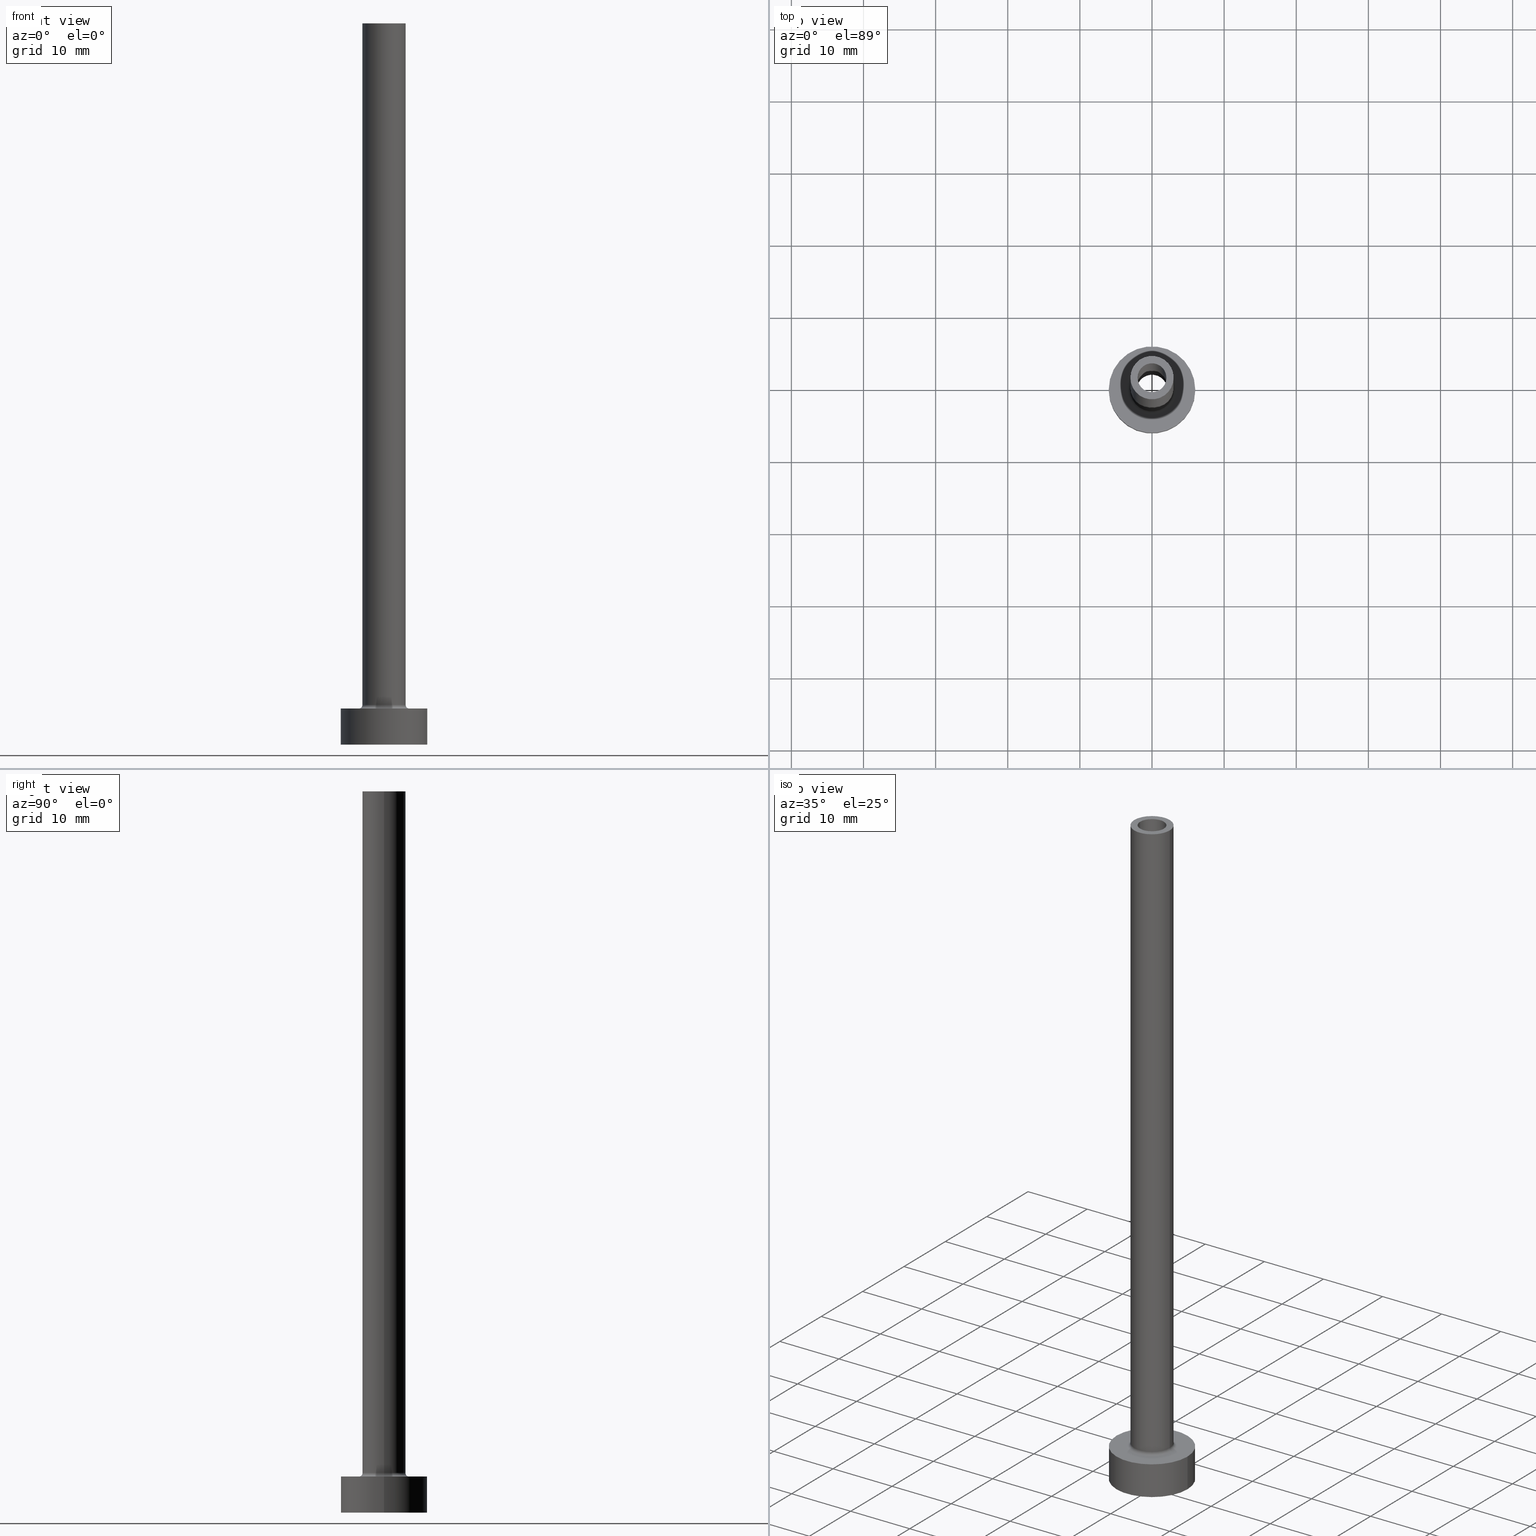
[diagram: canonical four-view strip — front | top / right | iso, engineering-drawing reading convention]
A machine part, canonical four-view strip (front | top / right | iso — engineering-drawing reading convention). The complete STEP part file that produces these views, byte-faithful:
ISO-10303-21;
HEADER;
FILE_DESCRIPTION (( 'STEP AP203' ),
    '1' );
FILE_NAME ('1d39.STEP',
    '2023-02-13T17:46:49',
    ( '' ),
    ( '' ),
    'SwSTEP 2.0',
    'SolidWorks 2019',
    '' );
FILE_SCHEMA (( 'CONFIG_CONTROL_DESIGN' ));
ENDSEC;

DATA;
#1 = ORIENTED_EDGE ( 'NONE', *, *, #30, .T. ) ;
#2 = ADVANCED_FACE ( 'NONE', ( #85, #230 ), #116, .F. ) ;
#3 = CARTESIAN_POINT ( 'NONE',  ( 2.000000000000000000, 2.449293598294705921E-16, 100.0000000000000000 ) ) ;
#4 = AXIS2_PLACEMENT_3D ( 'NONE', #364, #332, #152 ) ;
#5 = APPROVAL_DATE_TIME ( #229, #184 ) ;
#6 = VERTEX_POINT ( 'NONE', #192 ) ;
#7 = EDGE_LOOP ( 'NONE', ( #169, #284, #318, #346 ) ) ;
#8 = AXIS2_PLACEMENT_3D ( 'NONE', #281, #450, #112 ) ;
#9 = LOCAL_TIME ( 18, 46, 49.00000000000000000, #193 ) ;
#10 = DIRECTION ( 'NONE',  ( 0.000000000000000000, 0.000000000000000000, 1.000000000000000000 ) ) ;
#11 = VERTEX_POINT ( 'NONE', #265 ) ;
#12 = CARTESIAN_POINT ( 'NONE',  ( 0.000000000000000000, 0.000000000000000000, 55.00000000000000711 ) ) ;
#13 = EDGE_CURVE ( 'NONE', #219, #11, #358, .T. ) ;
#14 = CARTESIAN_POINT ( 'NONE',  ( 0.000000000000000000, 0.000000000000000000, 55.00000000000000711 ) ) ;
#15 = AXIS2_PLACEMENT_3D ( 'NONE', #410, #98, #460 ) ;
#16 = PERSON_AND_ORGANIZATION_ROLE ( 'classification_officer' ) ;
#17 = DIRECTION ( 'NONE',  ( 1.000000000000000000, 0.000000000000000000, 0.000000000000000000 ) ) ;
#18 = APPLICATION_CONTEXT ( 'configuration controlled 3d designs of mechanical parts and assemblies' ) ;
#19 = DIRECTION ( 'NONE',  ( 0.000000000000000000, 0.000000000000000000, 1.000000000000000000 ) ) ;
#20 = DIRECTION ( 'NONE',  ( 1.000000000000000000, 0.000000000000000000, 0.000000000000000000 ) ) ;
#21 = AXIS2_PLACEMENT_3D ( 'NONE', #14, #435, #154 ) ;
#22 = CIRCLE ( 'NONE', #15, 2.149999999999999911 ) ;
#23 = LOCAL_TIME ( 18, 46, 49.00000000000000000, #301 ) ;
#24 = DIRECTION ( 'NONE',  ( 0.000000000000000000, 0.000000000000000000, -1.000000000000000000 ) ) ;
#25 = EDGE_CURVE ( 'NONE', #282, #210, #42, .T. ) ;
#26 = CARTESIAN_POINT ( 'NONE',  ( 3.000000000000000444, 3.673940397442060361E-16, 100.0000000000000000 ) ) ;
#27 = CYLINDRICAL_SURFACE ( 'NONE', #431, 6.000000000000000888 ) ;
#28 = ORIENTED_EDGE ( 'NONE', *, *, #81, .T. ) ;
#29 = VECTOR ( 'NONE', #366, 1000.000000000000000 ) ;
#30 = EDGE_CURVE ( 'NONE', #187, #140, #209, .T. ) ;
#31 = ADVANCED_FACE ( 'NONE', ( #231, #288 ), #397, .T. ) ;
#32 = CARTESIAN_POINT ( 'NONE',  ( 6.000000000000000888, 7.347880794884120722E-16, 5.000000000000000000 ) ) ;
#33 = AXIS2_PLACEMENT_3D ( 'NONE', #155, #89, #447 ) ;
#34 = ORIENTED_EDGE ( 'NONE', *, *, #13, .F. ) ;
#35 = DIRECTION ( 'NONE',  ( 0.000000000000000000, 0.000000000000000000, 1.000000000000000000 ) ) ;
#36 = EDGE_LOOP ( 'NONE', ( #118, #415, #328, #313 ) ) ;
#37 = DIRECTION ( 'NONE',  ( 0.000000000000000000, 0.000000000000000000, -1.000000000000000000 ) ) ;
#38 = ORIENTED_EDGE ( 'NONE', *, *, #174, .T. ) ;
#39 = COORDINATED_UNIVERSAL_TIME_OFFSET ( 1, 0, .AHEAD. ) ;
#40 = VERTEX_POINT ( 'NONE', #296 ) ;
#41 = AXIS2_PLACEMENT_3D ( 'NONE', #242, #275, #136 ) ;
#42 = LINE ( 'NONE', #44, #393 ) ;
#43 = APPROVAL_STATUS ( 'not_yet_approved' ) ;
#44 = CARTESIAN_POINT ( 'NONE',  ( -3.000000000000000444, 0.000000000000000000, 100.0000000000000000 ) ) ;
#45 = ORIENTED_EDGE ( 'NONE', *, *, #228, .F. ) ;
#46 = ADVANCED_FACE ( 'NONE', ( #356 ), #107, .F. ) ;
#47 = AXIS2_PLACEMENT_3D ( 'NONE', #257, #290, #83 ) ;
#48 = ORIENTED_EDGE ( 'NONE', *, *, #176, .F. ) ;
#49 = CIRCLE ( 'NONE', #451, 2.000000000000000000 ) ;
#50 = EDGE_LOOP ( 'NONE', ( #253, #381, #379, #359 ) ) ;
#51 = LOCAL_TIME ( 18, 46, 49.00000000000000000, #437 ) ;
#52 = CC_DESIGN_APPROVAL ( #184, ( #440 ) ) ;
#53 = CARTESIAN_POINT ( 'NONE',  ( 0.000000000000000000, 0.000000000000000000, 0.000000000000000000 ) ) ;
#54 = APPROVAL_DATE_TIME ( #191, #204 ) ;
#55 = DIRECTION ( 'NONE',  ( 0.000000000000000000, -1.000000000000000000, 0.000000000000000000 ) ) ;
#56 = DIRECTION ( 'NONE',  ( 0.000000000000000000, 0.000000000000000000, -1.000000000000000000 ) ) ;
#57 = CIRCLE ( 'NONE', #369, 2.000000000000000000 ) ;
#58 = DIRECTION ( 'NONE',  ( 0.000000000000000000, 0.000000000000000000, 1.000000000000000000 ) ) ;
#59 = DIRECTION ( 'NONE',  ( -1.000000000000000000, 0.000000000000000000, 0.000000000000000000 ) ) ;
#60 = ADVANCED_FACE ( 'NONE', ( #87, #226 ), #430, .T. ) ;
#61 = CARTESIAN_POINT ( 'NONE',  ( -3.000000000000000444, 0.000000000000000000, 5.500000000000005329 ) ) ;
#62 = AXIS2_PLACEMENT_3D ( 'NONE', #405, #93, #59 ) ;
#63 = FACE_OUTER_BOUND ( 'NONE', #148, .T. ) ;
#64 = VERTEX_POINT ( 'NONE', #388 ) ;
#65 = CARTESIAN_POINT ( 'NONE',  ( 0.000000000000000000, 0.000000000000000000, 5.000000000000000000 ) ) ;
#66 = PERSON ( 'NEUR�EN�', 'NEUR�EN�', 'NEUR�EN�', ('NEUR�EN�'), ('NEUR�EN�'), ('NEUR�EN�') ) ;
#67 = PRODUCT_DEFINITION_SHAPE ( 'NONE', 'NONE',  #440 ) ;
#68 = ORIENTED_EDGE ( 'NONE', *, *, #211, .F. ) ;
#69 = CARTESIAN_POINT ( 'NONE',  ( -2.149999999999999911, 0.000000000000000000, 55.00000000000000711 ) ) ;
#70 = ORIENTED_EDGE ( 'NONE', *, *, #305, .T. ) ;
#71 = CARTESIAN_POINT ( 'NONE',  ( -6.000000000000000888, 0.000000000000000000, 0.000000000000000000 ) ) ;
#72 = VERTEX_POINT ( 'NONE', #120 ) ;
#73 = DIRECTION ( 'NONE',  ( 1.000000000000000000, 0.000000000000000000, 0.000000000000000000 ) ) ;
#74 = EDGE_CURVE ( 'NONE', #426, #385, #199, .T. ) ;
#75 = ORIENTED_EDGE ( 'NONE', *, *, #228, .T. ) ;
#76 = DIRECTION ( 'NONE',  ( -0.000000000000000000, -0.000000000000000000, -1.000000000000000000 ) ) ;
#77 = VECTOR ( 'NONE', #370, 1000.000000000000000 ) ;
#78 = ORIENTED_EDGE ( 'NONE', *, *, #417, .T. ) ;
#79 = DIRECTION ( 'NONE',  ( 0.000000000000000000, 0.000000000000000000, 1.000000000000000000 ) ) ;
#80 = CARTESIAN_POINT ( 'NONE',  ( 0.000000000000000000, 0.000000000000000000, 0.000000000000000000 ) ) ;
#81 = EDGE_CURVE ( 'NONE', #72, #11, #360, .T. ) ;
#82 = APPLICATION_PROTOCOL_DEFINITION ( 'international standard', 'config_control_design', 1994, #363 ) ;
#83 = DIRECTION ( 'NONE',  ( 1.000000000000000000, 0.000000000000000000, -0.000000000000000000 ) ) ;
#84 = ORIENTED_EDGE ( 'NONE', *, *, #111, .T. ) ;
#85 = FACE_BOUND ( 'NONE', #432, .T. ) ;
#86 = CIRCLE ( 'NONE', #188, 6.000000000000000888 ) ;
#87 = FACE_BOUND ( 'NONE', #102, .T. ) ;
#88 = APPROVAL_ROLE ( '' ) ;
#89 = DIRECTION ( 'NONE',  ( -0.000000000000000000, -0.000000000000000000, -1.000000000000000000 ) ) ;
#90 = AXIS2_PLACEMENT_3D ( 'NONE', #223, #55, #391 ) ;
#91 = DIRECTION ( 'NONE',  ( 0.000000000000000000, 0.000000000000000000, 1.000000000000000000 ) ) ;
#92 = CIRCLE ( 'NONE', #349, 3.000000000000000444 ) ;
#93 = DIRECTION ( 'NONE',  ( 0.000000000000000000, 0.000000000000000000, -1.000000000000000000 ) ) ;
#94 = EDGE_CURVE ( 'NONE', #421, #40, #227, .T. ) ;
#95 = CARTESIAN_POINT ( 'NONE',  ( 0.000000000000000000, 0.000000000000000000, 100.0000000000000000 ) ) ;
#96 = CC_DESIGN_DATE_AND_TIME_ASSIGNMENT ( #398, #407, ( #440 ) ) ;
#97 = CC_DESIGN_PERSON_AND_ORGANIZATION_ASSIGNMENT ( #404, #200, ( #235 ) ) ;
#98 = DIRECTION ( 'NONE',  ( 0.000000000000000000, 0.000000000000000000, 1.000000000000000000 ) ) ;
#99 = CIRCLE ( 'NONE', #195, 0.4999999999999995559 ) ;
#100 = SECURITY_CLASSIFICATION ( '', '', #400 ) ;
#101 = DIRECTION ( 'NONE',  ( -0.000000000000000000, -0.000000000000000000, -1.000000000000000000 ) ) ;
#102 = EDGE_LOOP ( 'NONE', ( #137, #250 ) ) ;
#103 = CARTESIAN_POINT ( 'NONE',  ( 0.000000000000000000, 0.000000000000000000, 0.000000000000000000 ) ) ;
#104 = ORIENTED_EDGE ( 'NONE', *, *, #321, .T. ) ;
#105 = CYLINDRICAL_SURFACE ( 'NONE', #317, 2.000000000000000000 ) ;
#106 = EDGE_LOOP ( 'NONE', ( #329, #110 ) ) ;
#107 = TOROIDAL_SURFACE ( 'NONE', #434, 3.500000000000000444, 0.5000000000000000000 ) ;
#108 = AXIS2_PLACEMENT_3D ( 'NONE', #343, #24, #165 ) ;
#109 = DIRECTION ( 'NONE',  ( -0.000000000000000000, -0.000000000000000000, -1.000000000000000000 ) ) ;
#110 = ORIENTED_EDGE ( 'NONE', *, *, #74, .F. ) ;
#111 = EDGE_CURVE ( 'NONE', #40, #421, #262, .T. ) ;
#112 = DIRECTION ( 'NONE',  ( -1.000000000000000000, 0.000000000000000000, 0.000000000000000000 ) ) ;
#113 = ORIENTED_EDGE ( 'NONE', *, *, #190, .T. ) ;
#114 = DIRECTION ( 'NONE',  ( -0.000000000000000000, -0.000000000000000000, -1.000000000000000000 ) ) ;
#115 = EDGE_LOOP ( 'NONE', ( #387, #252, #214, #177 ) ) ;
#116 = PLANE ( 'NONE',  #47 ) ;
#117 = AXIS2_PLACEMENT_3D ( 'NONE', #131, #58, #341 ) ;
#118 = ORIENTED_EDGE ( 'NONE', *, *, #339, .F. ) ;
#119 = VERTEX_POINT ( 'NONE', #3 ) ;
#120 = CARTESIAN_POINT ( 'NONE',  ( -2.149999999999999911, 0.000000000000000000, 0.000000000000000000 ) ) ;
#121 = CYLINDRICAL_SURFACE ( 'NONE', #164, 6.000000000000000888 ) ;
#122 = CIRCLE ( 'NONE', #277, 3.500000000000000444 ) ;
#123 = LINE ( 'NONE', #373, #77 ) ;
#124 = CALENDAR_DATE ( 2023, 13, 2 ) ;
#125 = CARTESIAN_POINT ( 'NONE',  ( -3.500000000000000444, 4.286263797015737088E-16, 5.500000000000005329 ) ) ;
#126 = AXIS2_PLACEMENT_3D ( 'NONE', #12, #186, #294 ) ;
#127 = CARTESIAN_POINT ( 'NONE',  ( 3.000000000000000444, 3.673940397442060361E-16, 5.500000000000005329 ) ) ;
#128 = VECTOR ( 'NONE', #267, 1000.000000000000000 ) ;
#129 = CARTESIAN_POINT ( 'NONE',  ( 3.500000000000000444, 0.000000000000000000, 5.000000000000002665 ) ) ;
#130 = CALENDAR_DATE ( 2023, 13, 2 ) ;
#131 = CARTESIAN_POINT ( 'NONE',  ( 0.000000000000000000, 0.000000000000000000, 5.500000000000005329 ) ) ;
#132 = DIRECTION ( 'NONE',  ( 1.000000000000000000, 0.000000000000000000, 0.000000000000000000 ) ) ;
#133 = CLOSED_SHELL ( 'NONE', ( #316, #419, #46, #448, #357, #135, #31, #160, #144, #60, #244, #273, #2, #260 ) ) ;
#134 = CIRCLE ( 'NONE', #233, 3.500000000000000444 ) ;
#135 = ADVANCED_FACE ( 'NONE', ( #297 ), #121, .T. ) ;
#136 = DIRECTION ( 'NONE',  ( 1.000000000000000000, 0.000000000000000000, 0.000000000000000000 ) ) ;
#137 = ORIENTED_EDGE ( 'NONE', *, *, #305, .F. ) ;
#138 = PRODUCT ( '1d39', '1d39', '', ( #222 ) ) ;
#139 = DIRECTION ( 'NONE',  ( 1.000000000000000000, 0.000000000000000000, 0.000000000000000000 ) ) ;
#140 = VERTEX_POINT ( 'NONE', #129 ) ;
#141 = CC_DESIGN_PERSON_AND_ORGANIZATION_ASSIGNMENT ( #336, #16, ( #100 ) ) ;
#142 = DIRECTION ( 'NONE',  ( 1.000000000000000000, 0.000000000000000000, 0.000000000000000000 ) ) ;
#143 = VERTEX_POINT ( 'NONE', #376 ) ;
#144 = ADVANCED_FACE ( 'NONE', ( #268 ), #375, .T. ) ;
#145 = CIRCLE ( 'NONE', #334, 2.149999999999999911 ) ;
#146 = CYLINDRICAL_SURFACE ( 'NONE', #8, 3.000000000000000444 ) ;
#147 = EDGE_LOOP ( 'NONE', ( #34, #287, #220, #28 ) ) ;
#148 = EDGE_LOOP ( 'NONE', ( #325, #68, #1, #319 ) ) ;
#149 = ORIENTED_EDGE ( 'NONE', *, *, #174, .F. ) ;
#150 = DIRECTION ( 'NONE',  ( 1.000000000000000000, 0.000000000000000000, 0.000000000000000000 ) ) ;
#151 = CARTESIAN_POINT ( 'NONE',  ( 0.000000000000000000, 0.000000000000000000, 5.500000000000005329 ) ) ;
#152 = DIRECTION ( 'NONE',  ( 1.000000000000000000, 0.000000000000000000, -0.000000000000000000 ) ) ;
#153 = DIRECTION ( 'NONE',  ( 1.000000000000000000, 0.000000000000000000, -0.000000000000000000 ) ) ;
#154 = DIRECTION ( 'NONE',  ( 1.000000000000000000, 0.000000000000000000, 0.000000000000000000 ) ) ;
#155 = CARTESIAN_POINT ( 'NONE',  ( 0.000000000000000000, 0.000000000000000000, 100.0000000000000000 ) ) ;
#156 = CIRCLE ( 'NONE', #117, 3.000000000000000444 ) ;
#157 = DIRECTION ( 'NONE',  ( -1.000000000000000000, 0.000000000000000000, 0.000000000000000000 ) ) ;
#158 = EDGE_CURVE ( 'NONE', #210, #254, #99, .T. ) ;
#159 = DATE_AND_TIME ( #124, #51 ) ;
#160 = ADVANCED_FACE ( 'NONE', ( #399, #304 ), #232, .F. ) ;
#161 = DIRECTION ( 'NONE',  ( 1.000000000000000000, 0.000000000000000000, 0.000000000000000000 ) ) ;
#162 = PERSON_AND_ORGANIZATION ( #66, #266 ) ;
#163 = CARTESIAN_POINT ( 'NONE',  ( -3.500000000000000444, 4.286263797015737088E-16, 5.000000000000002665 ) ) ;
#164 = AXIS2_PLACEMENT_3D ( 'NONE', #427, #114, #157 ) ;
#165 = DIRECTION ( 'NONE',  ( -1.000000000000000000, 0.000000000000000000, 0.000000000000000000 ) ) ;
#166 = CARTESIAN_POINT ( 'NONE',  ( 2.000000000000000000, 2.449293598294705921E-16, 55.00000000000000711 ) ) ;
#167 = EDGE_CURVE ( 'NONE', #361, #72, #367, .T. ) ;
#168 = CARTESIAN_POINT ( 'NONE',  ( 6.000000000000000888, 7.347880794884120722E-16, 0.000000000000000000 ) ) ;
#169 = ORIENTED_EDGE ( 'NONE', *, *, #383, .F. ) ;
#170 = ADVANCED_BREP_SHAPE_REPRESENTATION ( '1d39', ( #446, #247 ), #382 ) ;
#171 = CIRCLE ( 'NONE', #41, 6.000000000000000888 ) ;
#172 = DIRECTION ( 'NONE',  ( -0.000000000000000000, -0.000000000000000000, -1.000000000000000000 ) ) ;
#173 = ORIENTED_EDGE ( 'NONE', *, *, #74, .T. ) ;
#174 = EDGE_CURVE ( 'NONE', #282, #6, #422, .T. ) ;
#175 = LINE ( 'NONE', #32, #442 ) ;
#176 = EDGE_CURVE ( 'NONE', #11, #72, #221, .T. ) ;
#177 = ORIENTED_EDGE ( 'NONE', *, *, #25, .F. ) ;
#178 = CARTESIAN_POINT ( 'NONE',  ( 0.000000000000000000, 0.000000000000000000, 100.0000000000000000 ) ) ;
#179 = EDGE_LOOP ( 'NONE', ( #104, #452 ) ) ;
#180 = CIRCLE ( 'NONE', #298, 6.000000000000000888 ) ;
#181 = EDGE_LOOP ( 'NONE', ( #412, #259, #173, #315 ) ) ;
#182 = PERSON_AND_ORGANIZATION ( #66, #266 ) ;
#183 = DIRECTION ( 'NONE',  ( 1.000000000000000000, 0.000000000000000000, 0.000000000000000000 ) ) ;
#184 = APPROVAL ( #43, 'NEUR�EN�' ) ;
#185 =( NAMED_UNIT ( * ) SI_UNIT ( $, .STERADIAN. ) SOLID_ANGLE_UNIT ( ) );
#186 = DIRECTION ( 'NONE',  ( 0.000000000000000000, 0.000000000000000000, 1.000000000000000000 ) ) ;
#187 = VERTEX_POINT ( 'NONE', #127 ) ;
#188 = AXIS2_PLACEMENT_3D ( 'NONE', #274, #19, #161 ) ;
#189 = DIRECTION ( 'NONE',  ( -0.000000000000000000, -0.000000000000000000, -1.000000000000000000 ) ) ;
#190 = EDGE_CURVE ( 'NONE', #119, #421, #123, .T. ) ;
#191 = DATE_AND_TIME ( #130, #9 ) ;
#192 = CARTESIAN_POINT ( 'NONE',  ( 3.000000000000000444, 3.673940397442060361E-16, 100.0000000000000000 ) ) ;
#193 = COORDINATED_UNIVERSAL_TIME_OFFSET ( 1, 0, .AHEAD. ) ;
#194 = DIRECTION ( 'NONE',  ( 1.000000000000000000, 0.000000000000000000, 0.000000000000000000 ) ) ;
#195 = AXIS2_PLACEMENT_3D ( 'NONE', #125, #236, #272 ) ;
#196 = APPROVAL_ROLE ( '' ) ;
#197 = LINE ( 'NONE', #344, #128 ) ;
#198 = CARTESIAN_POINT ( 'NONE',  ( -2.149999999999999911, 0.000000000000000000, 61.08111831820431092 ) ) ;
#199 = CIRCLE ( 'NONE', #459, 6.000000000000000888 ) ;
#200 = PERSON_AND_ORGANIZATION_ROLE ( 'creator' ) ;
#201 = DIRECTION ( 'NONE',  ( 0.000000000000000000, 0.000000000000000000, 1.000000000000000000 ) ) ;
#202 = VECTOR ( 'NONE', #101, 1000.000000000000000 ) ;
#203 = CYLINDRICAL_SURFACE ( 'NONE', #108, 2.149999999999999911 ) ;
#204 = APPROVAL ( #365, 'NEUR�EN�' ) ;
#205 =( LENGTH_UNIT ( ) NAMED_UNIT ( * ) SI_UNIT ( .MILLI., .METRE. ) );
#206 = EDGE_LOOP ( 'NONE', ( #246, #456, #75, #458 ) ) ;
#207 = CC_DESIGN_DATE_AND_TIME_ASSIGNMENT ( #159, #340, ( #100 ) ) ;
#208 = DIRECTION ( 'NONE',  ( -0.000000000000000000, -0.000000000000000000, -1.000000000000000000 ) ) ;
#209 = CIRCLE ( 'NONE', #90, 0.5000000000000004441 ) ;
#210 = VERTEX_POINT ( 'NONE', #61 ) ;
#211 = EDGE_CURVE ( 'NONE', #187, #210, #156, .T. ) ;
#212 = AXIS2_PLACEMENT_3D ( 'NONE', #218, #37, #240 ) ;
#213 = DIRECTION ( 'NONE',  ( -1.000000000000000000, 0.000000000000000000, 0.000000000000000000 ) ) ;
#214 = ORIENTED_EDGE ( 'NONE', *, *, #211, .T. ) ;
#215 = EDGE_CURVE ( 'NONE', #119, #64, #49, .T. ) ;
#216 = LINE ( 'NONE', #26, #395 ) ;
#217 = ORIENTED_EDGE ( 'NONE', *, *, #353, .T. ) ;
#218 = CARTESIAN_POINT ( 'NONE',  ( 0.000000000000000000, 0.000000000000000000, 61.08111831820431092 ) ) ;
#219 = VERTEX_POINT ( 'NONE', #299 ) ;
#220 = ORIENTED_EDGE ( 'NONE', *, *, #167, .T. ) ;
#221 = CIRCLE ( 'NONE', #291, 2.149999999999999911 ) ;
#222 = MECHANICAL_CONTEXT ( 'NONE', #18, 'mechanical' ) ;
#223 = CARTESIAN_POINT ( 'NONE',  ( 3.500000000000000444, 0.000000000000000000, 5.500000000000005329 ) ) ;
#224 = DIRECTION ( 'NONE',  ( 0.000000000000000000, 0.000000000000000000, 1.000000000000000000 ) ) ;
#225 = APPROVAL_ROLE ( '' ) ;
#226 = FACE_OUTER_BOUND ( 'NONE', #425, .T. ) ;
#227 = CIRCLE ( 'NONE', #126, 2.000000000000000000 ) ;
#228 = EDGE_CURVE ( 'NONE', #64, #40, #197, .T. ) ;
#229 = DATE_AND_TIME ( #396, #248 ) ;
#230 = FACE_OUTER_BOUND ( 'NONE', #392, .T. ) ;
#231 = FACE_BOUND ( 'NONE', #241, .T. ) ;
#232 = PLANE ( 'NONE',  #239 ) ;
#233 = AXIS2_PLACEMENT_3D ( 'NONE', #347, #172, #139 ) ;
#234 = UNCERTAINTY_MEASURE_WITH_UNIT (LENGTH_MEASURE( 1.000000000000000082E-05 ), #205, 'distance_accuracy_value', 'NONE');
#235 = PRODUCT_DEFINITION_FORMATION_WITH_SPECIFIED_SOURCE ( 'LIBOVOLN�', '', #138, .NOT_KNOWN. ) ;
#236 = DIRECTION ( 'NONE',  ( 1.224646799147353207E-16, 1.000000000000000000, -0.000000000000000000 ) ) ;
#237 = PERSON_AND_ORGANIZATION ( #66, #266 ) ;
#238 = DIRECTION ( 'NONE',  ( 0.000000000000000000, 0.000000000000000000, 1.000000000000000000 ) ) ;
#239 = AXIS2_PLACEMENT_3D ( 'NONE', #401, #238, #300 ) ;
#240 = DIRECTION ( 'NONE',  ( -1.000000000000000000, 0.000000000000000000, 0.000000000000000000 ) ) ;
#241 = EDGE_LOOP ( 'NONE', ( #78, #217 ) ) ;
#242 = CARTESIAN_POINT ( 'NONE',  ( 0.000000000000000000, 0.000000000000000000, 5.000000000000000000 ) ) ;
#243 = ORIENTED_EDGE ( 'NONE', *, *, #25, .T. ) ;
#244 = ADVANCED_FACE ( 'NONE', ( #63 ), #362, .F. ) ;
#245 = DIRECTION ( 'NONE',  ( 0.000000000000000000, 0.000000000000000000, 1.000000000000000000 ) ) ;
#246 = ORIENTED_EDGE ( 'NONE', *, *, #190, .F. ) ;
#247 = AXIS2_PLACEMENT_3D ( 'NONE', #330, #79, #150 ) ;
#248 = LOCAL_TIME ( 18, 46, 49.00000000000000000, #322 ) ;
#249 = FACE_OUTER_BOUND ( 'NONE', #348, .T. ) ;
#250 = ORIENTED_EDGE ( 'NONE', *, *, #215, .F. ) ;
#251 = DIRECTION ( 'NONE',  ( 0.000000000000000000, 0.000000000000000000, 1.000000000000000000 ) ) ;
#252 = ORIENTED_EDGE ( 'NONE', *, *, #402, .T. ) ;
#253 = ORIENTED_EDGE ( 'NONE', *, *, #371, .T. ) ;
#254 = VERTEX_POINT ( 'NONE', #163 ) ;
#255 = VECTOR ( 'NONE', #56, 1000.000000000000000 ) ;
#256 = CARTESIAN_POINT ( 'NONE',  ( 0.000000000000000000, 0.000000000000000000, 5.000000000000000000 ) ) ;
#257 = CARTESIAN_POINT ( 'NONE',  ( 0.000000000000000000, 0.000000000000000000, 55.00000000000000711 ) ) ;
#258 = EDGE_CURVE ( 'NONE', #354, #143, #86, .T. ) ;
#259 = ORIENTED_EDGE ( 'NONE', *, *, #339, .T. ) ;
#260 = ADVANCED_FACE ( 'NONE', ( #302 ), #439, .F. ) ;
#261 = ORIENTED_EDGE ( 'NONE', *, *, #94, .T. ) ;
#262 = CIRCLE ( 'NONE', #21, 2.000000000000000000 ) ;
#263 = PERSON_AND_ORGANIZATION_ROLE ( 'creator' ) ;
#264 = AXIS2_PLACEMENT_3D ( 'NONE', #338, #269, #20 ) ;
#265 = CARTESIAN_POINT ( 'NONE',  ( 2.149999999999999911, 2.632990618166809235E-16, 0.000000000000000000 ) ) ;
#266 = ORGANIZATION ( 'NEUR�EN�', 'NEUR�EN�', '' ) ;
#267 = DIRECTION ( 'NONE',  ( 0.000000000000000000, 0.000000000000000000, -1.000000000000000000 ) ) ;
#268 = FACE_OUTER_BOUND ( 'NONE', #311, .T. ) ;
#269 = DIRECTION ( 'NONE',  ( 0.000000000000000000, 0.000000000000000000, 1.000000000000000000 ) ) ;
#270 = CIRCLE ( 'NONE', #389, 3.000000000000000444 ) ;
#271 = APPROVAL_DATE_TIME ( #441, #337 ) ;
#272 = DIRECTION ( 'NONE',  ( -1.000000000000000000, 1.224646799147354440E-16, 0.000000000000000000 ) ) ;
#273 = ADVANCED_FACE ( 'NONE', ( #443 ), #203, .F. ) ;
#274 = CARTESIAN_POINT ( 'NONE',  ( 0.000000000000000000, 0.000000000000000000, 5.000000000000000000 ) ) ;
#275 = DIRECTION ( 'NONE',  ( 0.000000000000000000, 0.000000000000000000, 1.000000000000000000 ) ) ;
#276 = PRODUCT_RELATED_PRODUCT_CATEGORY ( 'detail', '', ( #138 ) ) ;
#277 = AXIS2_PLACEMENT_3D ( 'NONE', #65, #350, #142 ) ;
#278 = CC_DESIGN_APPROVAL ( #337, ( #100 ) ) ;
#279 = DIRECTION ( 'NONE',  ( -1.000000000000000000, 0.000000000000000000, 0.000000000000000000 ) ) ;
#280 = ORIENTED_EDGE ( 'NONE', *, *, #111, .F. ) ;
#281 = CARTESIAN_POINT ( 'NONE',  ( 0.000000000000000000, 0.000000000000000000, 100.0000000000000000 ) ) ;
#282 = VERTEX_POINT ( 'NONE', #307 ) ;
#283 = DIRECTION ( 'NONE',  ( -0.000000000000000000, -0.000000000000000000, -1.000000000000000000 ) ) ;
#284 = ORIENTED_EDGE ( 'NONE', *, *, #158, .T. ) ;
#285 = AXIS2_PLACEMENT_3D ( 'NONE', #438, #91, #194 ) ;
#286 = DIRECTION ( 'NONE',  ( 1.000000000000000000, 0.000000000000000000, 0.000000000000000000 ) ) ;
#287 = ORIENTED_EDGE ( 'NONE', *, *, #293, .T. ) ;
#288 = FACE_OUTER_BOUND ( 'NONE', #179, .T. ) ;
#289 = PERSON_AND_ORGANIZATION_ROLE ( 'design_owner' ) ;
#290 = DIRECTION ( 'NONE',  ( 0.000000000000000000, 0.000000000000000000, 1.000000000000000000 ) ) ;
#291 = AXIS2_PLACEMENT_3D ( 'NONE', #335, #408, #436 ) ;
#292 =( NAMED_UNIT ( * ) PLANE_ANGLE_UNIT ( ) SI_UNIT ( $, .RADIAN. ) );
#293 = EDGE_CURVE ( 'NONE', #219, #361, #22, .T. ) ;
#294 = DIRECTION ( 'NONE',  ( 1.000000000000000000, 0.000000000000000000, 0.000000000000000000 ) ) ;
#295 = APPLICATION_PROTOCOL_DEFINITION ( 'international standard', 'config_control_design', 1994, #18 ) ;
#296 = CARTESIAN_POINT ( 'NONE',  ( -2.000000000000000000, 0.000000000000000000, 55.00000000000000711 ) ) ;
#297 = FACE_OUTER_BOUND ( 'NONE', #36, .T. ) ;
#298 = AXIS2_PLACEMENT_3D ( 'NONE', #103, #251, #73 ) ;
#299 = CARTESIAN_POINT ( 'NONE',  ( 2.149999999999999911, 2.632990618166809235E-16, 55.00000000000000711 ) ) ;
#300 = DIRECTION ( 'NONE',  ( 1.000000000000000000, 0.000000000000000000, -0.000000000000000000 ) ) ;
#301 = COORDINATED_UNIVERSAL_TIME_OFFSET ( 1, 0, .AHEAD. ) ;
#302 = FACE_OUTER_BOUND ( 'NONE', #206, .T. ) ;
#303 = CALENDAR_DATE ( 2023, 13, 2 ) ;
#304 = FACE_OUTER_BOUND ( 'NONE', #106, .T. ) ;
#305 = EDGE_CURVE ( 'NONE', #64, #119, #57, .T. ) ;
#306 = CC_DESIGN_APPROVAL ( #204, ( #235 ) ) ;
#307 = CARTESIAN_POINT ( 'NONE',  ( -3.000000000000000444, 0.000000000000000000, 100.0000000000000000 ) ) ;
#308 = ORIENTED_EDGE ( 'NONE', *, *, #429, .T. ) ;
#309 = APPROVAL_PERSON_ORGANIZATION ( #428, #184, #225 ) ;
#310 = LINE ( 'NONE', #414, #202 ) ;
#311 = EDGE_LOOP ( 'NONE', ( #418, #149, #243, #433 ) ) ;
#312 = CARTESIAN_POINT ( 'NONE',  ( 0.000000000000000000, 0.000000000000000000, 5.500000000000005329 ) ) ;
#313 = ORIENTED_EDGE ( 'NONE', *, *, #454, .T. ) ;
#314 = DIRECTION ( 'NONE',  ( 0.000000000000000000, 0.000000000000000000, 1.000000000000000000 ) ) ;
#315 = ORIENTED_EDGE ( 'NONE', *, *, #423, .F. ) ;
#316 = ADVANCED_FACE ( 'NONE', ( #249 ), #105, .F. ) ;
#317 = AXIS2_PLACEMENT_3D ( 'NONE', #449, #378, #279 ) ;
#318 = ORIENTED_EDGE ( 'NONE', *, *, #417, .F. ) ;
#319 = ORIENTED_EDGE ( 'NONE', *, *, #353, .F. ) ;
#320 = DIRECTION ( 'NONE',  ( 0.000000000000000000, 0.000000000000000000, 1.000000000000000000 ) ) ;
#321 = EDGE_CURVE ( 'NONE', #143, #354, #171, .T. ) ;
#322 = COORDINATED_UNIVERSAL_TIME_OFFSET ( 1, 0, .AHEAD. ) ;
#323 = CARTESIAN_POINT ( 'NONE',  ( 2.149999999999999911, 2.632990618166809235E-16, 61.08111831820431092 ) ) ;
#324 = AXIS2_PLACEMENT_3D ( 'NONE', #53, #189, #331 ) ;
#325 = ORIENTED_EDGE ( 'NONE', *, *, #158, .F. ) ;
#326 = PERSON_AND_ORGANIZATION ( #66, #266 ) ;
#327 = CC_DESIGN_PERSON_AND_ORGANIZATION_ASSIGNMENT ( #326, #263, ( #440 ) ) ;
#328 = ORIENTED_EDGE ( 'NONE', *, *, #423, .T. ) ;
#329 = ORIENTED_EDGE ( 'NONE', *, *, #454, .F. ) ;
#330 = CARTESIAN_POINT ( 'NONE',  ( 0.000000000000000000, 0.000000000000000000, 0.000000000000000000 ) ) ;
#331 = DIRECTION ( 'NONE',  ( 1.000000000000000000, 0.000000000000000000, 0.000000000000000000 ) ) ;
#332 = DIRECTION ( 'NONE',  ( 0.000000000000000000, 0.000000000000000000, 1.000000000000000000 ) ) ;
#333 = PERSON_AND_ORGANIZATION ( #66, #266 ) ;
#334 = AXIS2_PLACEMENT_3D ( 'NONE', #420, #245, #132 ) ;
#335 = CARTESIAN_POINT ( 'NONE',  ( 0.000000000000000000, 0.000000000000000000, 0.000000000000000000 ) ) ;
#336 = PERSON_AND_ORGANIZATION ( #66, #266 ) ;
#337 = APPROVAL ( #368, 'NEUR�EN�' ) ;
#338 = CARTESIAN_POINT ( 'NONE',  ( 0.000000000000000000, 0.000000000000000000, 5.500000000000005329 ) ) ;
#339 = EDGE_CURVE ( 'NONE', #354, #426, #175, .T. ) ;
#340 = DATE_TIME_ROLE ( 'classification_date' ) ;
#341 = DIRECTION ( 'NONE',  ( 1.000000000000000000, 0.000000000000000000, 0.000000000000000000 ) ) ;
#342 = CALENDAR_DATE ( 2023, 13, 2 ) ;
#343 = CARTESIAN_POINT ( 'NONE',  ( 0.000000000000000000, 0.000000000000000000, 61.08111831820431092 ) ) ;
#344 = CARTESIAN_POINT ( 'NONE',  ( -2.000000000000000000, 0.000000000000000000, 100.0000000000000000 ) ) ;
#345 = CARTESIAN_POINT ( 'NONE',  ( 6.000000000000000888, 7.347880794884120722E-16, 5.000000000000000000 ) ) ;
#346 = ORIENTED_EDGE ( 'NONE', *, *, #30, .F. ) ;
#347 = CARTESIAN_POINT ( 'NONE',  ( 0.000000000000000000, 0.000000000000000000, 5.000000000000000000 ) ) ;
#348 = EDGE_LOOP ( 'NONE', ( #70, #113, #280, #45 ) ) ;
#349 = AXIS2_PLACEMENT_3D ( 'NONE', #178, #314, #424 ) ;
#350 = DIRECTION ( 'NONE',  ( -0.000000000000000000, -0.000000000000000000, -1.000000000000000000 ) ) ;
#351 = ORIENTED_EDGE ( 'NONE', *, *, #371, .F. ) ;
#352 = CARTESIAN_POINT ( 'NONE',  ( 0.000000000000000000, 0.000000000000000000, 5.000000000000000000 ) ) ;
#353 = EDGE_CURVE ( 'NONE', #254, #140, #122, .T. ) ;
#354 = VERTEX_POINT ( 'NONE', #345 ) ;
#355 = ORIENTED_EDGE ( 'NONE', *, *, #81, .F. ) ;
#356 = FACE_OUTER_BOUND ( 'NONE', #7, .T. ) ;
#357 = ADVANCED_FACE ( 'NONE', ( #386 ), #27, .T. ) ;
#358 = LINE ( 'NONE', #323, #29 ) ;
#359 = ORIENTED_EDGE ( 'NONE', *, *, #167, .F. ) ;
#360 = CIRCLE ( 'NONE', #324, 2.149999999999999911 ) ;
#361 = VERTEX_POINT ( 'NONE', #69 ) ;
#362 = TOROIDAL_SURFACE ( 'NONE', #264, 3.500000000000000444, 0.5000000000000000000 ) ;
#363 = APPLICATION_CONTEXT ( 'configuration controlled 3d designs of mechanical parts and assemblies' ) ;
#364 = CARTESIAN_POINT ( 'NONE',  ( 0.000000000000000000, 0.000000000000000000, 100.0000000000000000 ) ) ;
#365 = APPROVAL_STATUS ( 'not_yet_approved' ) ;
#366 = DIRECTION ( 'NONE',  ( 0.000000000000000000, 0.000000000000000000, -1.000000000000000000 ) ) ;
#367 = LINE ( 'NONE', #198, #255 ) ;
#368 = APPROVAL_STATUS ( 'not_yet_approved' ) ;
#369 = AXIS2_PLACEMENT_3D ( 'NONE', #457, #416, #286 ) ;
#370 = DIRECTION ( 'NONE',  ( 0.000000000000000000, 0.000000000000000000, -1.000000000000000000 ) ) ;
#371 = EDGE_CURVE ( 'NONE', #361, #219, #145, .T. ) ;
#372 = PERSON_AND_ORGANIZATION_ROLE ( 'design_supplier' ) ;
#373 = CARTESIAN_POINT ( 'NONE',  ( 2.000000000000000000, 2.449293598294705921E-16, 100.0000000000000000 ) ) ;
#374 = DESIGN_CONTEXT ( 'detailed design', #363, 'design' ) ;
#375 = CYLINDRICAL_SURFACE ( 'NONE', #33, 3.000000000000000444 ) ;
#376 = CARTESIAN_POINT ( 'NONE',  ( -6.000000000000000888, 0.000000000000000000, 5.000000000000000000 ) ) ;
#377 = ORIENTED_EDGE ( 'NONE', *, *, #293, .F. ) ;
#378 = DIRECTION ( 'NONE',  ( 0.000000000000000000, 0.000000000000000000, -1.000000000000000000 ) ) ;
#379 = ORIENTED_EDGE ( 'NONE', *, *, #176, .T. ) ;
#380 = CYLINDRICAL_SURFACE ( 'NONE', #212, 2.149999999999999911 ) ;
#381 = ORIENTED_EDGE ( 'NONE', *, *, #13, .T. ) ;
#382 =( GEOMETRIC_REPRESENTATION_CONTEXT ( 3 ) GLOBAL_UNCERTAINTY_ASSIGNED_CONTEXT ( ( #234 ) ) GLOBAL_UNIT_ASSIGNED_CONTEXT ( ( #205, #292, #185 ) ) REPRESENTATION_CONTEXT ( 'NONE', 'WORKASPACE' ) );
#383 = EDGE_CURVE ( 'NONE', #210, #187, #270, .T. ) ;
#384 = DIRECTION ( 'NONE',  ( 1.000000000000000000, 0.000000000000000000, 0.000000000000000000 ) ) ;
#385 = VERTEX_POINT ( 'NONE', #71 ) ;
#386 = FACE_OUTER_BOUND ( 'NONE', #181, .T. ) ;
#387 = ORIENTED_EDGE ( 'NONE', *, *, #429, .F. ) ;
#388 = CARTESIAN_POINT ( 'NONE',  ( -2.000000000000000000, 0.000000000000000000, 100.0000000000000000 ) ) ;
#389 = AXIS2_PLACEMENT_3D ( 'NONE', #312, #35, #384 ) ;
#390 = CC_DESIGN_SECURITY_CLASSIFICATION ( #100, ( #235 ) ) ;
#391 = DIRECTION ( 'NONE',  ( 0.000000000000000000, 0.000000000000000000, -1.000000000000000000 ) ) ;
#392 = EDGE_LOOP ( 'NONE', ( #351, #377 ) ) ;
#393 = VECTOR ( 'NONE', #76, 1000.000000000000000 ) ;
#394 = DIRECTION ( 'NONE',  ( 1.000000000000000000, 0.000000000000000000, 0.000000000000000000 ) ) ;
#395 = VECTOR ( 'NONE', #208, 1000.000000000000000 ) ;
#396 = CALENDAR_DATE ( 2023, 13, 2 ) ;
#397 = PLANE ( 'NONE',  #403 ) ;
#398 = DATE_AND_TIME ( #342, #444 ) ;
#399 = FACE_BOUND ( 'NONE', #461, .T. ) ;
#400 = SECURITY_CLASSIFICATION_LEVEL ( 'unclassified' ) ;
#401 = CARTESIAN_POINT ( 'NONE',  ( 0.000000000000000000, 0.000000000000000000, 0.000000000000000000 ) ) ;
#402 = EDGE_CURVE ( 'NONE', #6, #187, #216, .T. ) ;
#403 = AXIS2_PLACEMENT_3D ( 'NONE', #256, #10, #153 ) ;
#404 = PERSON_AND_ORGANIZATION ( #66, #266 ) ;
#405 = CARTESIAN_POINT ( 'NONE',  ( 0.000000000000000000, 0.000000000000000000, 100.0000000000000000 ) ) ;
#406 = CC_DESIGN_PERSON_AND_ORGANIZATION_ASSIGNMENT ( #182, #289, ( #138 ) ) ;
#407 = DATE_TIME_ROLE ( 'creation_date' ) ;
#408 = DIRECTION ( 'NONE',  ( -0.000000000000000000, -0.000000000000000000, -1.000000000000000000 ) ) ;
#409 = CC_DESIGN_PERSON_AND_ORGANIZATION_ASSIGNMENT ( #333, #372, ( #235 ) ) ;
#410 = CARTESIAN_POINT ( 'NONE',  ( 0.000000000000000000, 0.000000000000000000, 55.00000000000000711 ) ) ;
#411 = FACE_OUTER_BOUND ( 'NONE', #50, .T. ) ;
#412 = ORIENTED_EDGE ( 'NONE', *, *, #258, .F. ) ;
#413 = APPROVAL_PERSON_ORGANIZATION ( #162, #337, #196 ) ;
#414 = CARTESIAN_POINT ( 'NONE',  ( -6.000000000000000888, 0.000000000000000000, 5.000000000000000000 ) ) ;
#415 = ORIENTED_EDGE ( 'NONE', *, *, #321, .F. ) ;
#416 = DIRECTION ( 'NONE',  ( 0.000000000000000000, 0.000000000000000000, 1.000000000000000000 ) ) ;
#417 = EDGE_CURVE ( 'NONE', #140, #254, #134, .T. ) ;
#418 = ORIENTED_EDGE ( 'NONE', *, *, #402, .F. ) ;
#419 = ADVANCED_FACE ( 'NONE', ( #411 ), #380, .F. ) ;
#420 = CARTESIAN_POINT ( 'NONE',  ( 0.000000000000000000, 0.000000000000000000, 55.00000000000000711 ) ) ;
#421 = VERTEX_POINT ( 'NONE', #166 ) ;
#422 = CIRCLE ( 'NONE', #285, 3.000000000000000444 ) ;
#423 = EDGE_CURVE ( 'NONE', #143, #385, #310, .T. ) ;
#424 = DIRECTION ( 'NONE',  ( 1.000000000000000000, 0.000000000000000000, 0.000000000000000000 ) ) ;
#425 = EDGE_LOOP ( 'NONE', ( #38, #308 ) ) ;
#426 = VERTEX_POINT ( 'NONE', #168 ) ;
#427 = CARTESIAN_POINT ( 'NONE',  ( 0.000000000000000000, 0.000000000000000000, 5.000000000000000000 ) ) ;
#428 = PERSON_AND_ORGANIZATION ( #66, #266 ) ;
#429 = EDGE_CURVE ( 'NONE', #6, #282, #92, .T. ) ;
#430 = PLANE ( 'NONE',  #4 ) ;
#431 = AXIS2_PLACEMENT_3D ( 'NONE', #352, #283, #213 ) ;
#432 = EDGE_LOOP ( 'NONE', ( #84, #261 ) ) ;
#433 = ORIENTED_EDGE ( 'NONE', *, *, #383, .T. ) ;
#434 = AXIS2_PLACEMENT_3D ( 'NONE', #151, #224, #183 ) ;
#435 = DIRECTION ( 'NONE',  ( 0.000000000000000000, 0.000000000000000000, 1.000000000000000000 ) ) ;
#436 = DIRECTION ( 'NONE',  ( 1.000000000000000000, 0.000000000000000000, 0.000000000000000000 ) ) ;
#437 = COORDINATED_UNIVERSAL_TIME_OFFSET ( 1, 0, .AHEAD. ) ;
#438 = CARTESIAN_POINT ( 'NONE',  ( 0.000000000000000000, 0.000000000000000000, 100.0000000000000000 ) ) ;
#439 = CYLINDRICAL_SURFACE ( 'NONE', #62, 2.000000000000000000 ) ;
#440 = PRODUCT_DEFINITION ( 'NEZN�M�', '', #235, #374 ) ;
#441 = DATE_AND_TIME ( #303, #23 ) ;
#442 = VECTOR ( 'NONE', #109, 1000.000000000000000 ) ;
#443 = FACE_OUTER_BOUND ( 'NONE', #147, .T. ) ;
#444 = LOCAL_TIME ( 18, 46, 49.00000000000000000, #39 ) ;
#445 = SHAPE_DEFINITION_REPRESENTATION ( #67, #170 ) ;
#446 = MANIFOLD_SOLID_BREP ( 'Odebrat vysunut�m4', #133 ) ;
#447 = DIRECTION ( 'NONE',  ( -1.000000000000000000, 0.000000000000000000, 0.000000000000000000 ) ) ;
#448 = ADVANCED_FACE ( 'NONE', ( #455 ), #146, .T. ) ;
#449 = CARTESIAN_POINT ( 'NONE',  ( 0.000000000000000000, 0.000000000000000000, 100.0000000000000000 ) ) ;
#450 = DIRECTION ( 'NONE',  ( -0.000000000000000000, -0.000000000000000000, -1.000000000000000000 ) ) ;
#451 = AXIS2_PLACEMENT_3D ( 'NONE', #95, #201, #17 ) ;
#452 = ORIENTED_EDGE ( 'NONE', *, *, #258, .T. ) ;
#453 = APPROVAL_PERSON_ORGANIZATION ( #237, #204, #88 ) ;
#454 = EDGE_CURVE ( 'NONE', #385, #426, #180, .T. ) ;
#455 = FACE_OUTER_BOUND ( 'NONE', #115, .T. ) ;
#456 = ORIENTED_EDGE ( 'NONE', *, *, #215, .T. ) ;
#457 = CARTESIAN_POINT ( 'NONE',  ( 0.000000000000000000, 0.000000000000000000, 100.0000000000000000 ) ) ;
#458 = ORIENTED_EDGE ( 'NONE', *, *, #94, .F. ) ;
#459 = AXIS2_PLACEMENT_3D ( 'NONE', #80, #320, #394 ) ;
#460 = DIRECTION ( 'NONE',  ( 1.000000000000000000, 0.000000000000000000, 0.000000000000000000 ) ) ;
#461 = EDGE_LOOP ( 'NONE', ( #355, #48 ) ) ;
ENDSEC;
END-ISO-10303-21;
